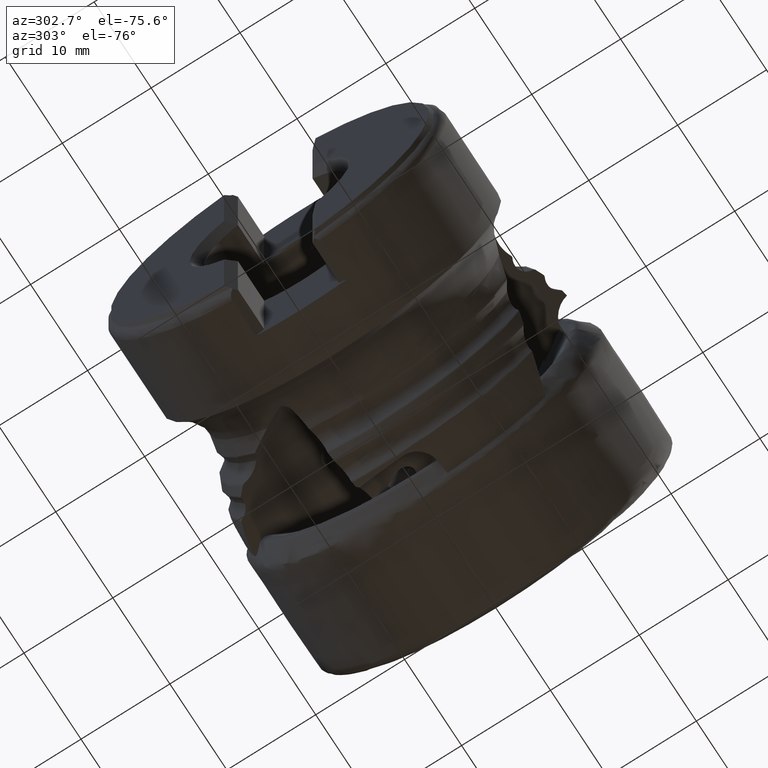
[diagram: clean part render]
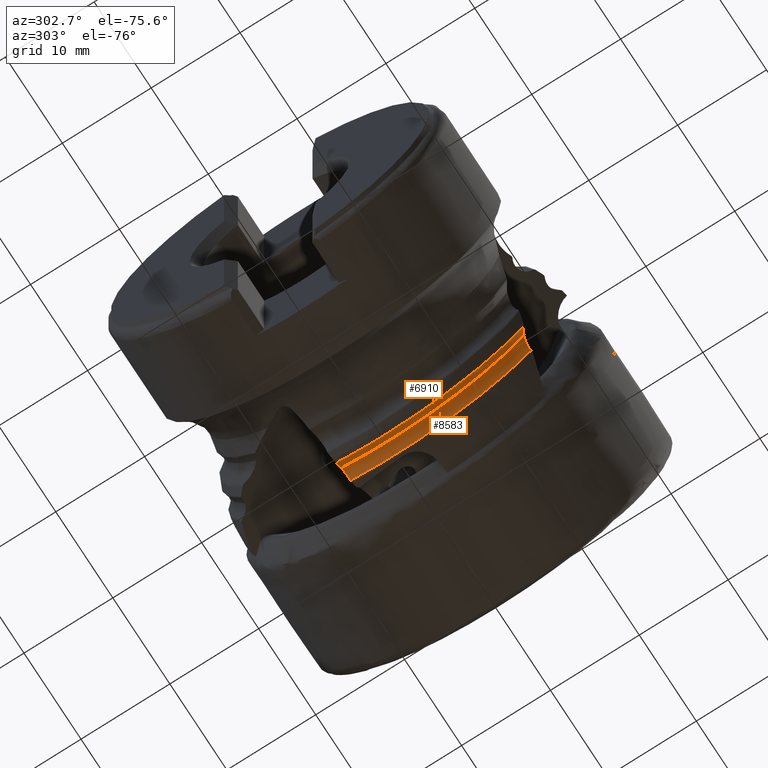
[diagram: same view with one multi-face feature highlighted, each face labeled with its STEP entity id]
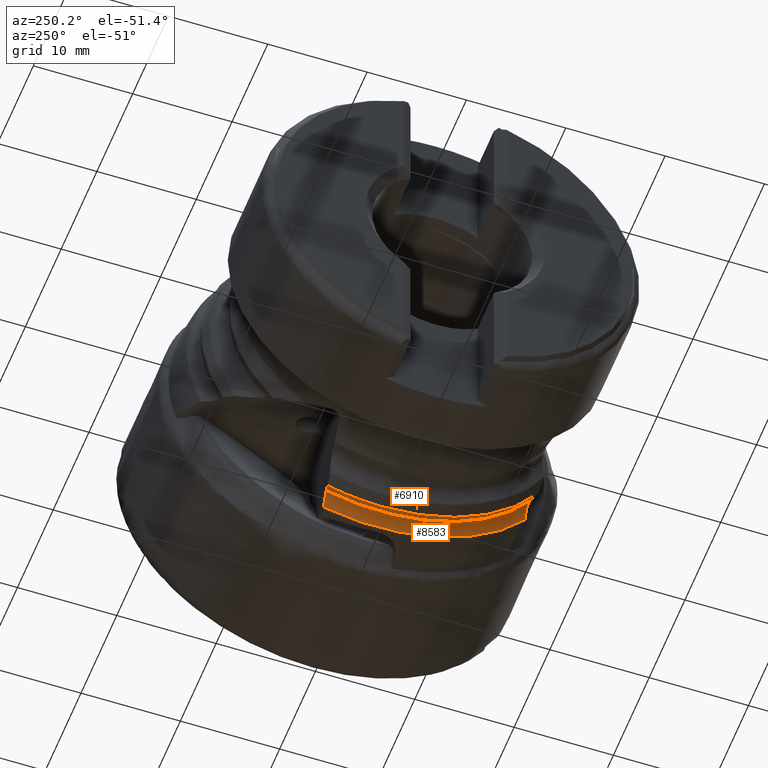
[diagram: same view with one multi-face feature highlighted, each face labeled with its STEP entity id]
A machine part, auxiliary view. The highlighted faces form ONE feature: a constant-radius fillet chain: 2 tangent blend faces with common blend radius 1.5 mm. The faces share edges in the B-rep.
A second angle (auxiliary view) of the same feature is appended — it is thin or edge-on in the first view.
Their STEP definitions:
[1] entity #6910 (Torus):
#92 = TOROIDAL_SURFACE ( 'NONE', #2609, 19.66423619861799900, 1.500000000000004200 ) ;
#111 = CARTESIAN_POINT ( 'NONE',  ( -18.44366900355058200, 5.500690513880296200, -17.32692728172132800 ) ) ;
#132 = ORIENTED_EDGE ( 'NONE', *, *, #11057, .T. ) ;
#327 = CIRCLE ( 'NONE', #4379, 18.34207260807083600 ) ;
#653 = AXIS2_PLACEMENT_3D ( 'NONE', #6077, #1373, #8967 ) ;
#671 = CARTESIAN_POINT ( 'NONE',  ( -18.31731063262400000, -15.17898443392614100, -9.977231193252709600 ) ) ;
#1036 = CARTESIAN_POINT ( 'NONE',  ( -18.90843732244387700, 5.577882453368157900, -17.47337560107234100 ) ) ;
#1373 = DIRECTION ( 'NONE',  ( 1.000000000000000000, 0.0000000000000000000, 0.0000000000000000000 ) ) ;
#1767 = EDGE_CURVE ( 'NONE', #2672, #8910, #7019, .T. ) ;
#2016 = DIRECTION ( 'NONE',  ( 0.0000000000000000000, 0.0000000000000000000, 1.000000000000000000 ) ) ;
#2105 = CARTESIAN_POINT ( 'NONE',  ( -18.20000000000000300, 0.0000000000000000000, 0.0000000000000000000 ) ) ;
#2234 = B_SPLINE_CURVE_WITH_KNOTS ( 'NONE', 3,
 ( #3701, #671, #10324, #4540, #5525, #7478 ),
 .UNSPECIFIED., .F., .F.,
 ( 4, 2, 4 ),
 ( 0.001951340560328023800, 0.002385665649473355700, 0.002819990738618687600 ),
 .UNSPECIFIED. ) ;
#2479 = CARTESIAN_POINT ( 'NONE',  ( -18.90843732244387700, 5.577882453368157900, -17.47337560107234100 ) ) ;
#2601 = VERTEX_POINT ( 'NONE', #7005 ) ;
#2609 = AXIS2_PLACEMENT_3D ( 'NONE', #2105, #5907, #2016 ) ;
#2672 = VERTEX_POINT ( 'NONE', #8843 ) ;
#3092 = VERTEX_POINT ( 'NONE', #8277 ) ;
#3701 = CARTESIAN_POINT ( 'NONE',  ( -18.19999999999930700, -15.13193472497308000, -10.04808579572894100 ) ) ;
#3813 = ORIENTED_EDGE ( 'NONE', *, *, #1767, .F. ) ;
#3858 = FACE_OUTER_BOUND ( 'NONE', #9701, .T. ) ;
#4354 = AXIS2_PLACEMENT_3D ( 'NONE', #7822, #10802, #5014 ) ;
#4379 = AXIS2_PLACEMENT_3D ( 'NONE', #7985, #8976, #10966 ) ;
#4540 = CARTESIAN_POINT ( 'NONE',  ( -18.67600313702011400, -15.37200162560684000, -9.812090206412072700 ) ) ;
#4836 = ORIENTED_EDGE ( 'NONE', *, *, #11154, .T. ) ;
#5014 = DIRECTION ( 'NONE',  ( 0.0000000000000000000, 0.0000000000000000000, 1.000000000000000000 ) ) ;
#5127 = CARTESIAN_POINT ( 'NONE',  ( -18.90843732244387000, -15.53762999944498100, -9.747496168765071200 ) ) ;
#5175 = ORIENTED_EDGE ( 'NONE', *, *, #5319, .T. ) ;
#5319 = EDGE_CURVE ( 'NONE', #3092, #8910, #327, .T. ) ;
#5525 = CARTESIAN_POINT ( 'NONE',  ( -18.79332825639224700, -15.44910242334148100, -9.772550615508487600 ) ) ;
#5907 = DIRECTION ( 'NONE',  ( -1.000000000000000000, -0.0000000000000000000, -0.0000000000000000000 ) ) ;
#5927 = CARTESIAN_POINT ( 'NONE',  ( -18.68126151810929500, 5.540151523293021200, -17.37646106999412900 ) ) ;
#6077 = CARTESIAN_POINT ( 'NONE',  ( -18.90843732244387700, 0.0000000000000000000, 0.0000000000000000000 ) ) ;
#6910 = ADVANCED_FACE ( 'NONE', ( #3858 ), #92, .F. ) ;
#7005 = CARTESIAN_POINT ( 'NONE',  ( -18.19999999999930700, -15.13193472497308000, -10.04808579572894100 ) ) ;
#7019 = B_SPLINE_CURVE_WITH_KNOTS ( 'NONE', 3,
 ( #11717, #8707, #111, #5927, #10744, #1036 ),
 .UNSPECIFIED., .F., .F.,
 ( 4, 2, 4 ),
 ( 0.001660504616862719300, 0.002028548552987819000, 0.002396592489112918900 ),
 .UNSPECIFIED. ) ;
#7478 = CARTESIAN_POINT ( 'NONE',  ( -18.90843732244387000, -15.53762999944498100, -9.747496168765071200 ) ) ;
#7822 = CARTESIAN_POINT ( 'NONE',  ( -18.20000000000000300, 0.0000000000000000000, 0.0000000000000000000 ) ) ;
#7985 = CARTESIAN_POINT ( 'NONE',  ( -18.90843732244387700, 0.0000000000000000000, 0.0000000000000000000 ) ) ;
#8277 = CARTESIAN_POINT ( 'NONE',  ( -18.90843732244387700, 0.0000000000000000000, -18.34207260807083600 ) ) ;
#8707 = CARTESIAN_POINT ( 'NONE',  ( -18.32263526145333900, 5.480588392207704600, -17.31771011496539000 ) ) ;
#8843 = CARTESIAN_POINT ( 'NONE',  ( -18.20000000000000300, 5.460220279114872200, -17.32412973810595200 ) ) ;
#8910 = VERTEX_POINT ( 'NONE', #2479 ) ;
#8967 = DIRECTION ( 'NONE',  ( 0.0000000000000000000, 0.0000000000000000000, -1.000000000000000000 ) ) ;
#8976 = DIRECTION ( 'NONE',  ( 1.000000000000000000, 0.0000000000000000000, 0.0000000000000000000 ) ) ;
#9048 = EDGE_CURVE ( 'NONE', #2601, #11502, #2234, .T. ) ;
#9701 = EDGE_LOOP ( 'NONE', ( #3813, #132, #11993, #4836, #5175 ) ) ;
#10229 = CIRCLE ( 'NONE', #4354, 18.16423619861799200 ) ;
#10324 = CARTESIAN_POINT ( 'NONE',  ( -18.43754936078335400, -15.23655266577299200, -9.914468461355170300 ) ) ;
#10744 = CARTESIAN_POINT ( 'NONE',  ( -18.79856528569025200, 5.559634144979390200, -17.41740277492249700 ) ) ;
#10802 = DIRECTION ( 'NONE',  ( -1.000000000000000000, -0.0000000000000000000, -0.0000000000000000000 ) ) ;
#10966 = DIRECTION ( 'NONE',  ( 0.0000000000000000000, 0.0000000000000000000, -1.000000000000000000 ) ) ;
#11057 = EDGE_CURVE ( 'NONE', #2672, #2601, #10229, .T. ) ;
#11154 = EDGE_CURVE ( 'NONE', #11502, #3092, #12201, .T. ) ;
#11502 = VERTEX_POINT ( 'NONE', #5127 ) ;
#11717 = CARTESIAN_POINT ( 'NONE',  ( -18.20000000000000300, 5.460220279114872200, -17.32412973810595200 ) ) ;
#11993 = ORIENTED_EDGE ( 'NONE', *, *, #9048, .T. ) ;
#12201 = CIRCLE ( 'NONE', #653, 18.34207260807083600 ) ;
[2] entity #8583 (Torus):
#18 = DIRECTION ( 'NONE',  ( -1.000000000000000000, -0.0000000000000000000, -0.0000000000000000000 ) ) ;
#685 = ORIENTED_EDGE ( 'NONE', *, *, #11057, .F. ) ;
#1209 = EDGE_CURVE ( 'NONE', #5332, #2601, #6085, .T. ) ;
#1427 = CARTESIAN_POINT ( 'NONE',  ( -18.19999999999930700, -15.13193472497308000, -10.04808579572894100 ) ) ;
#2015 = VERTEX_POINT ( 'NONE', #11483 ) ;
#2601 = VERTEX_POINT ( 'NONE', #7005 ) ;
#2672 = VERTEX_POINT ( 'NONE', #8843 ) ;
#2794 = CARTESIAN_POINT ( 'NONE',  ( -18.20000000000000300, 5.460220279114872200, -17.32412973810595200 ) ) ;
#3373 = FACE_OUTER_BOUND ( 'NONE', #7026, .T. ) ;
#3613 = B_SPLINE_CURVE_WITH_KNOTS ( 'NONE', 3,
 ( #4738, #8531, #9366, #9507, #11488, #5667, #12413, #10391, #5710, #2794 ),
 .UNSPECIFIED., .F., .F.,
 ( 4, 2, 2, 2, 4 ),
 ( 4.311938784626446000E-007, 0.0004154495496245268000, 0.0008304679053705908800, 0.001245486261116655100, 0.001660504616862719300 ),
 .UNSPECIFIED. ) ;
#4354 = AXIS2_PLACEMENT_3D ( 'NONE', #7822, #10802, #5014 ) ;
#4738 = CARTESIAN_POINT ( 'NONE',  ( -16.88617794637232100, 5.242011618285883600, -18.20059959523488400 ) ) ;
#4988 = ORIENTED_EDGE ( 'NONE', *, *, #8153, .T. ) ;
#5014 = DIRECTION ( 'NONE',  ( 0.0000000000000000000, 0.0000000000000000000, 1.000000000000000000 ) ) ;
#5032 = ORIENTED_EDGE ( 'NONE', *, *, #7651, .F. ) ;
#5180 = CARTESIAN_POINT ( 'NONE',  ( -16.88617794637234600, -15.10410155178966100, -11.42832567551048400 ) ) ;
#5332 = VERTEX_POINT ( 'NONE', #5180 ) ;
#5667 = CARTESIAN_POINT ( 'NONE',  ( -17.54337879165702300, 5.351164083758116700, -17.50972692177830600 ) ) ;
#5710 = CARTESIAN_POINT ( 'NONE',  ( -18.06171247623123600, 5.437252529953088500, -17.33136871470302200 ) ) ;
#6085 = B_SPLINE_CURVE_WITH_KNOTS ( 'NONE', 3,
 ( #9143, #9021, #7228, #6175, #12065, #6257, #10074, #1427 ),
 .UNSPECIFIED., .F., .F.,
 ( 4, 2, 2, 4 ),
 ( 4.690185071132246300E-007, 0.0004881869039623399800, 0.0009759047894175666700, 0.001951340560328023800 ),
 .UNSPECIFIED. ) ;
#6127 = CIRCLE ( 'NONE', #8627, 18.94044644226499200 ) ;
#6175 = CARTESIAN_POINT ( 'NONE',  ( -17.22862756214211500, -14.97101976024067600, -10.89127684863360700 ) ) ;
#6257 = CARTESIAN_POINT ( 'NONE',  ( -17.67779421803443900, -14.96938930176415600, -10.41263058012458800 ) ) ;
#6745 = CARTESIAN_POINT ( 'NONE',  ( -18.20000000000000300, 0.0000000000000000000, 0.0000000000000000000 ) ) ;
#7005 = CARTESIAN_POINT ( 'NONE',  ( -18.19999999999930700, -15.13193472497308000, -10.04808579572894100 ) ) ;
#7026 = EDGE_LOOP ( 'NONE', ( #685, #5032, #4988, #9745 ) ) ;
#7228 = CARTESIAN_POINT ( 'NONE',  ( -17.03898289873411500, -15.01732317936663800, -11.15185366282115200 ) ) ;
#7651 = EDGE_CURVE ( 'NONE', #2015, #2672, #3613, .T. ) ;
#7822 = CARTESIAN_POINT ( 'NONE',  ( -18.20000000000000300, 0.0000000000000000000, 0.0000000000000000000 ) ) ;
#8153 = EDGE_CURVE ( 'NONE', #2015, #5332, #6127, .T. ) ;
#8531 = CARTESIAN_POINT ( 'NONE',  ( -16.95035830614502400, 5.252671136687829400, -18.07629374305212300 ) ) ;
#8556 = CARTESIAN_POINT ( 'NONE',  ( -16.88617794637232800, 0.0000000000000000000, 0.0000000000000000000 ) ) ;
#8583 = ADVANCED_FACE ( 'NONE', ( #3373 ), #9430, .F. ) ;
#8627 = AXIS2_PLACEMENT_3D ( 'NONE', #8556, #9528, #10419 ) ;
#8843 = CARTESIAN_POINT ( 'NONE',  ( -18.20000000000000300, 5.460220279114872200, -17.32412973810595200 ) ) ;
#9021 = CARTESIAN_POINT ( 'NONE',  ( -16.95551644160790200, -15.05321437507530500, -11.28698399220966000 ) ) ;
#9143 = CARTESIAN_POINT ( 'NONE',  ( -16.88617794637234600, -15.10410155178966100, -11.42832567551048400 ) ) ;
#9366 = CARTESIAN_POINT ( 'NONE',  ( -17.02832879519104400, 5.265621015213565800, -17.96260687680412400 ) ) ;
#9430 = TOROIDAL_SURFACE ( 'NONE', #10581, 19.66423619861799900, 1.500000000000004200 ) ;
#9507 = CARTESIAN_POINT ( 'NONE',  ( -17.21103402373377000, 5.295965964239715400, -17.75584275524494200 ) ) ;
#9528 = DIRECTION ( 'NONE',  ( -1.000000000000000000, -0.0000000000000000000, -0.0000000000000000000 ) ) ;
#9745 = ORIENTED_EDGE ( 'NONE', *, *, #1209, .T. ) ;
#10074 = CARTESIAN_POINT ( 'NONE',  ( -17.93653608729873700, -15.02626740279794000, -10.20721570905065300 ) ) ;
#10229 = CIRCLE ( 'NONE', #4354, 18.16423619861799200 ) ;
#10391 = CARTESIAN_POINT ( 'NONE',  ( -17.92787038846846000, 5.415023109574102400, -17.35799171068153200 ) ) ;
#10419 = DIRECTION ( 'NONE',  ( 0.0000000000000000000, 0.0000000000000000000, 1.000000000000000000 ) ) ;
#10581 = AXIS2_PLACEMENT_3D ( 'NONE', #6745, #18, #12508 ) ;
#10802 = DIRECTION ( 'NONE',  ( -1.000000000000000000, -0.0000000000000000000, -0.0000000000000000000 ) ) ;
#11057 = EDGE_CURVE ( 'NONE', #2672, #2601, #10229, .T. ) ;
#11483 = CARTESIAN_POINT ( 'NONE',  ( -16.88617794637232100, 5.242011618285883600, -18.20059959523488400 ) ) ;
#11488 = CARTESIAN_POINT ( 'NONE',  ( -17.31638974248105400, 5.313464171272425300, -17.66306620869444500 ) ) ;
#12065 = CARTESIAN_POINT ( 'NONE',  ( -17.33619436584431000, -14.96088345426488800, -10.76472854416436300 ) ) ;
#12413 = CARTESIAN_POINT ( 'NONE',  ( -17.66836515780873600, 5.371922684593397600, -17.44690143181727000 ) ) ;
#12508 = DIRECTION ( 'NONE',  ( 0.0000000000000000000, 0.0000000000000000000, 1.000000000000000000 ) ) ;